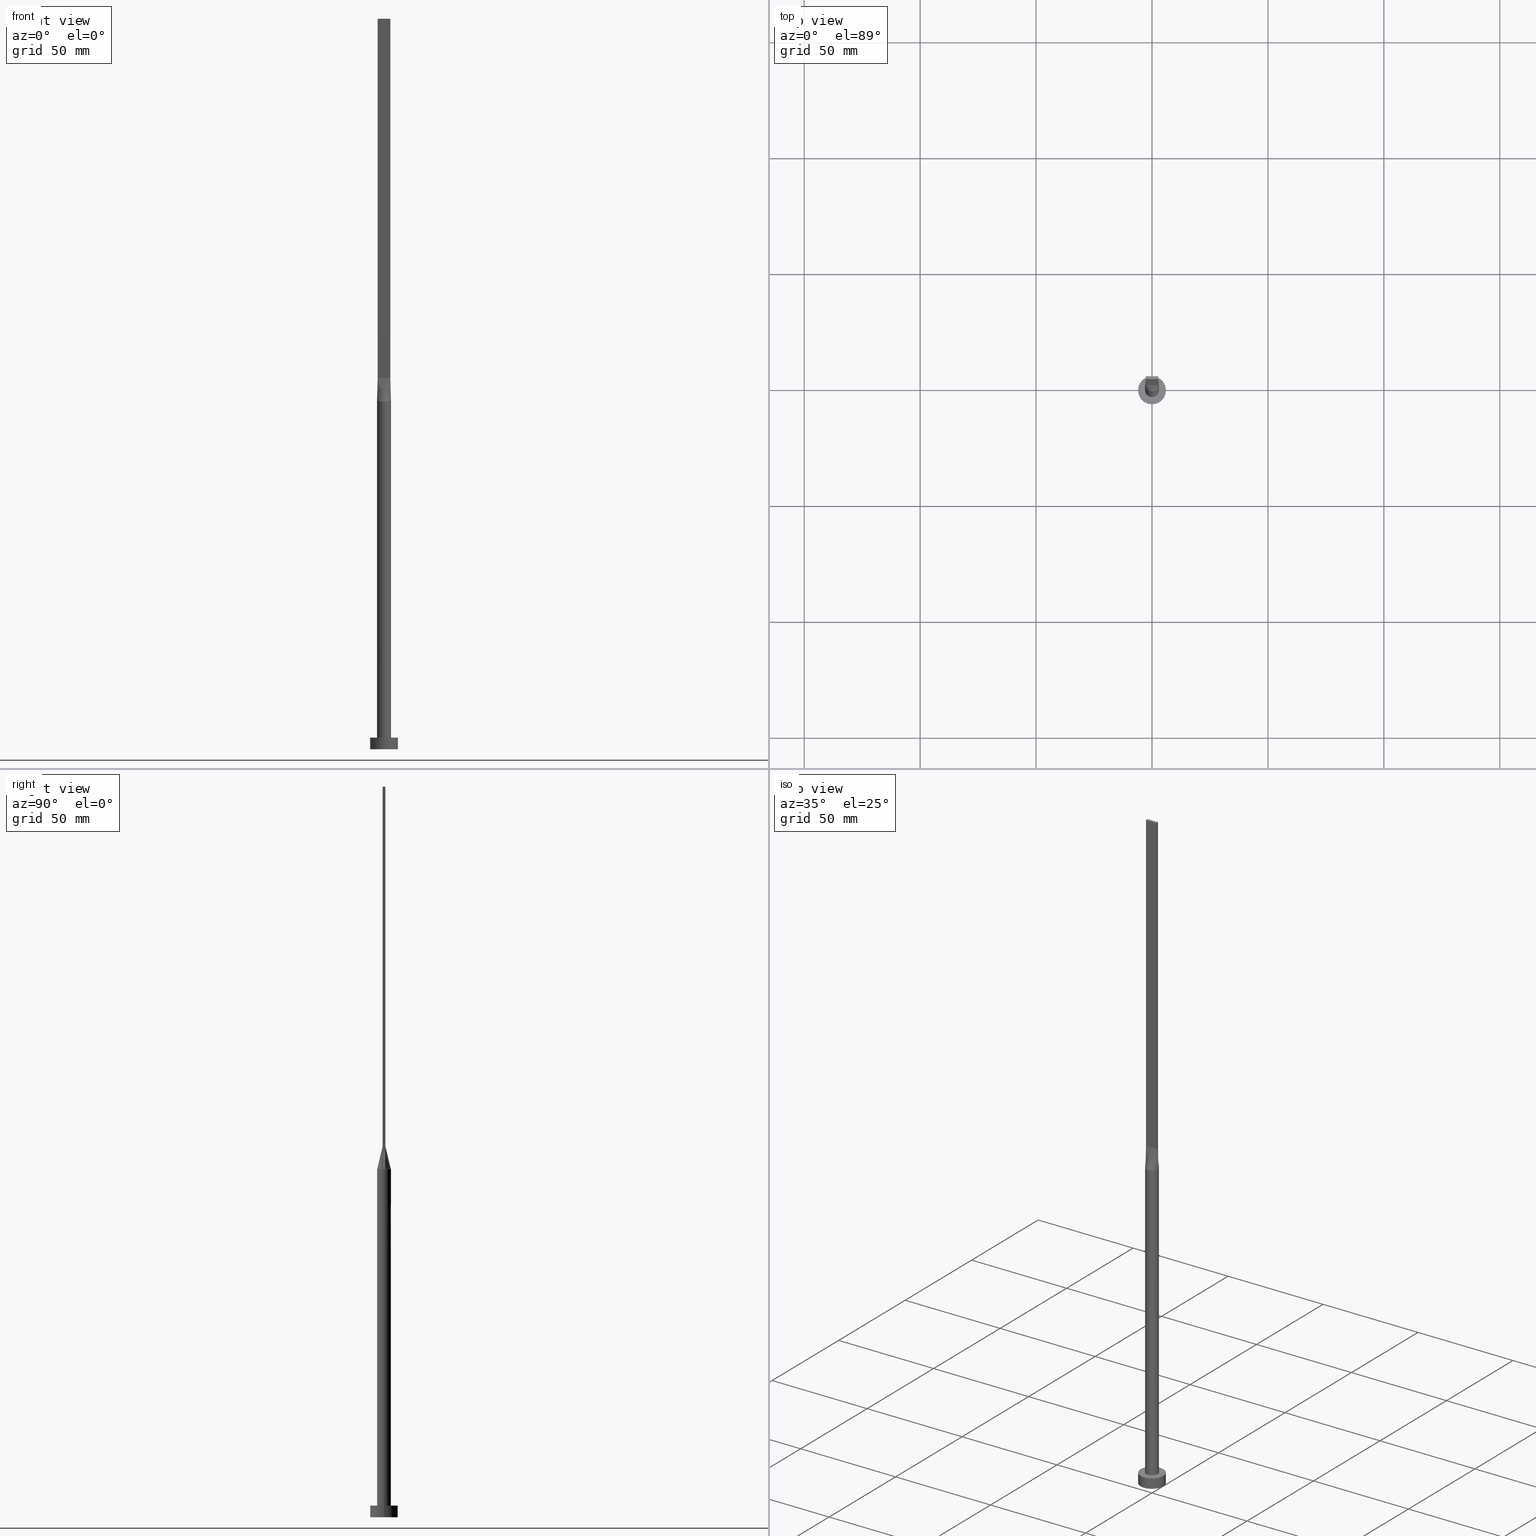
[diagram: canonical four-view strip — front | top / right | iso, engineering-drawing reading convention]
A machine part, canonical four-view strip (front | top / right | iso — engineering-drawing reading convention). The complete STEP part file that produces these views, byte-faithful:
ISO-10303-21;
HEADER;
FILE_DESCRIPTION (( 'STEP AP203' ),
    '1' );
FILE_NAME ('fc48.STEP',
    '2023-02-13T11:40:34',
    ( '' ),
    ( '' ),
    'SwSTEP 2.0',
    'SolidWorks 2019',
    '' );
FILE_SCHEMA (( 'CONFIG_CONTROL_DESIGN' ));
ENDSEC;

DATA;
#1 = VERTEX_POINT ( 'NONE', #105 ) ;
#2 = COORDINATED_UNIVERSAL_TIME_OFFSET ( 1, 0, .AHEAD. ) ;
#3 = VERTEX_POINT ( 'NONE', #55 ) ;
#4 = VERTEX_POINT ( 'NONE', #199 ) ;
#5 = CC_DESIGN_PERSON_AND_ORGANIZATION_ASSIGNMENT ( #410, #500, ( #15 ) ) ;
#6 = AXIS2_PLACEMENT_3D ( 'NONE', #347, #482, #294 ) ;
#7 = ORIENTED_EDGE ( 'NONE', *, *, #92, .F. ) ;
#8 = DATE_AND_TIME ( #132, #115 ) ;
#9 = CARTESIAN_POINT ( 'NONE',  ( 1.517787371616671876, -2.616501225271829156, 150.0000000000000853 ) ) ;
#10 = CARTESIAN_POINT ( 'NONE',  ( 0.8041209001220689379, 2.916015559847871863, 150.0000000000000000 ) ) ;
#11 = CARTESIAN_POINT ( 'NONE',  ( 2.291666666666667851, 0.6000000000000000888, 159.9999999999999716 ) ) ;
#12 = CARTESIAN_POINT ( 'NONE',  ( -6.000000000000000888, 0.000000000000000000, 5.000000000000000000 ) ) ;
#13 = CARTESIAN_POINT ( 'NONE',  ( 2.518011668798964209, -1.657305971825550506, 150.0000000000000000 ) ) ;
#14 = AXIS2_PLACEMENT_3D ( 'NONE', #104, #158, #342 ) ;
#15 = PRODUCT_DEFINITION_FORMATION_WITH_SPECIFIED_SOURCE ( 'LIBOVOLN�', '', #272, .NOT_KNOWN. ) ;
#16 = EDGE_CURVE ( 'NONE', #46, #434, #52, .T. ) ;
#17 = CARTESIAN_POINT ( 'NONE',  ( 2.750000000000000000, 0.6000000000000001998, 315.0000000000000000 ) ) ;
#18 = CARTESIAN_POINT ( 'NONE',  ( -2.792624347712117761, 1.135030881087315313, 150.0000000000000000 ) ) ;
#19 = CARTESIAN_POINT ( 'NONE',  ( -2.792624347712117761, 1.135030881087315313, 150.0000000000000000 ) ) ;
#20 = DIRECTION ( 'NONE',  ( 0.000000000000000000, 0.000000000000000000, 1.000000000000000000 ) ) ;
#21 = CARTESIAN_POINT ( 'NONE',  ( -0.4026715616377299356, 2.999999999999999556, 150.0000000000000000 ) ) ;
#22 = EDGE_CURVE ( 'NONE', #157, #310, #333, .T. ) ;
#23 = CARTESIAN_POINT ( 'NONE',  ( 1.517787371616672099, 2.616501225271827824, 150.0000000000000000 ) ) ;
#24 = CARTESIAN_POINT ( 'NONE',  ( -3.000000000000000444, 0.000000000000000000, 150.0000000000000000 ) ) ;
#25 = LINE ( 'NONE', #521, #152 ) ;
#26 = DIRECTION ( 'NONE',  ( -0.000000000000000000, -0.000000000000000000, -1.000000000000000000 ) ) ;
#27 = ORIENTED_EDGE ( 'NONE', *, *, #77, .F. ) ;
#28 =( NAMED_UNIT ( * ) SI_UNIT ( $, .STERADIAN. ) SOLID_ANGLE_UNIT ( ) );
#29 = CARTESIAN_POINT ( 'NONE',  ( -2.750000000000000000, -0.5999999999999994227, 315.0000000000000000 ) ) ;
#30 = ORIENTED_EDGE ( 'NONE', *, *, #502, .F. ) ;
#31 = APPLICATION_PROTOCOL_DEFINITION ( 'international standard', 'config_control_design', 1994, #360 ) ;
#32 = CARTESIAN_POINT ( 'NONE',  ( 0.000000000000000000, 0.000000000000000000, 0.000000000000000000 ) ) ;
#33 = VECTOR ( 'NONE', #245, 1000.000000000000000 ) ;
#34 = APPLICATION_PROTOCOL_DEFINITION ( 'international standard', 'config_control_design', 1994, #531 ) ;
#35 = FACE_OUTER_BOUND ( 'NONE', #279, .T. ) ;
#36 = CARTESIAN_POINT ( 'NONE',  ( -2.750000000000000000, 0.4000000000000000222, 159.9999999999999716 ) ) ;
#37 = CARTESIAN_POINT ( 'NONE',  ( 0.9166666666666676289, -0.5999999999999996447, 159.9999999999999716 ) ) ;
#38 = ORIENTED_EDGE ( 'NONE', *, *, #508, .F. ) ;
#39 = ADVANCED_FACE ( 'NONE', ( #242 ), #505, .T. ) ;
#40 = DIRECTION ( 'NONE',  ( -0.01810162078030960742, -0.003949444533885646501, -0.9998283518749604415 ) ) ;
#41 = DIRECTION ( 'NONE',  ( -0.01810162078030960742, 0.003949444533885591857, 0.9998283518749604415 ) ) ;
#42 = VERTEX_POINT ( 'NONE', #335 ) ;
#43 = CALENDAR_DATE ( 2023, 13, 2 ) ;
#44 = ORIENTED_EDGE ( 'NONE', *, *, #16, .F. ) ;
#45 = ADVANCED_FACE ( 'NONE', ( #381 ), #415, .F. ) ;
#46 = VERTEX_POINT ( 'NONE', #249 ) ;
#47 = APPROVAL_ROLE ( '' ) ;
#48 = ORIENTED_EDGE ( 'NONE', *, *, #356, .F. ) ;
#49 = CALENDAR_DATE ( 2023, 13, 2 ) ;
#50 = CARTESIAN_POINT ( 'NONE',  ( 1.833333333333333481, -0.5999999999999996447, 159.9999999999999716 ) ) ;
#51 = AXIS2_PLACEMENT_3D ( 'NONE', #29, #386, #251 ) ;
#52 = LINE ( 'NONE', #12, #357 ) ;
#53 = APPROVAL_ROLE ( '' ) ;
#54 = CARTESIAN_POINT ( 'NONE',  ( 2.878980386154874616, 0.8781411751610636029, 150.0000000000000284 ) ) ;
#55 = CARTESIAN_POINT ( 'NONE',  ( -2.931315536094174057, -0.6395601373676296220, 150.0000000000000000 ) ) ;
#56 = EDGE_CURVE ( 'NONE', #367, #364, #213, .T. ) ;
#57 = DIRECTION ( 'NONE',  ( 1.000000000000000000, 0.000000000000000000, 0.000000000000000000 ) ) ;
#58 = B_SPLINE_SURFACE_WITH_KNOTS ( 'NONE', 3, 1, ( 
 ( #516, #427 ),
 ( #110, #292 ),
 ( #86, #266 ),
 ( #127, #269 ),
 ( #447, #82 ),
 ( #440, #489 ) ),
 .UNSPECIFIED., .F., .F., .F.,
 ( 4, 2, 4 ),
 ( 2, 2 ),
 ( 0.000000000000000000, 0.5000000000000000000, 1.000000000000000000 ),
 ( 0.000000000000000000, 1.000000000000000000 ),
 .UNSPECIFIED. ) ;
#59 = CARTESIAN_POINT ( 'NONE',  ( 2.750000000000000000, -0.5999999999999997558, 315.0000000000000000 ) ) ;
#60 = PLANE ( 'NONE',  #193 ) ;
#61 = AXIS2_PLACEMENT_3D ( 'NONE', #490, #506, #577 ) ;
#62 = CIRCLE ( 'NONE', #325, 3.000000000000000444 ) ;
#63 = AXIS2_PLACEMENT_3D ( 'NONE', #270, #464, #405 ) ;
#64 = CARTESIAN_POINT ( 'NONE',  ( -2.518011668798964653, 1.657305971825549840, 150.0000000000000284 ) ) ;
#65 = FACE_OUTER_BOUND ( 'NONE', #526, .T. ) ;
#66 = ORIENTED_EDGE ( 'NONE', *, *, #460, .F. ) ;
#67 = CARTESIAN_POINT ( 'NONE',  ( 2.750000000000000000, 0.6000000000000001998, 160.0000000000000000 ) ) ;
#68 = LINE ( 'NONE', #24, #238 ) ;
#69 = CARTESIAN_POINT ( 'NONE',  ( -6.000000000000000888, 0.000000000000000000, 0.000000000000000000 ) ) ;
#70 = AXIS2_PLACEMENT_3D ( 'NONE', #87, #283, #57 ) ;
#71 = AXIS2_PLACEMENT_3D ( 'NONE', #378, #200, #432 ) ;
#72 = DIRECTION ( 'NONE',  ( 0.000000000000000000, 0.000000000000000000, 1.000000000000000000 ) ) ;
#73 = CIRCLE ( 'NONE', #413, 6.000000000000000888 ) ;
#74 = VERTEX_POINT ( 'NONE', #330 ) ;
#75 = LINE ( 'NONE', #334, #192 ) ;
#76 = CARTESIAN_POINT ( 'NONE',  ( -0.8041209001220698260, -2.916015559847872307, 150.0000000000000000 ) ) ;
#77 = EDGE_CURVE ( 'NONE', #85, #166, #291, .T. ) ;
#78 = CARTESIAN_POINT ( 'NONE',  ( 6.000000000000000888, 7.347880794884120722E-16, 5.000000000000000000 ) ) ;
#79 = PERSON_AND_ORGANIZATION ( #567, #237 ) ;
#80 = CARTESIAN_POINT ( 'NONE',  ( 0.000000000000000000, 0.000000000000000000, 150.0000000000000000 ) ) ;
#81 = VECTOR ( 'NONE', #568, 1000.000000000000000 ) ;
#82 = CARTESIAN_POINT ( 'NONE',  ( 2.750000000000000000, 0.4000000000000004108, 159.9999999999999716 ) ) ;
#83 = CARTESIAN_POINT ( 'NONE',  ( 0.000000000000000000, 0.000000000000000000, 150.0000000000000000 ) ) ;
#84 = ADVANCED_FACE ( 'NONE', ( #560, #154 ), #282, .T. ) ;
#85 = VERTEX_POINT ( 'NONE', #284 ) ;
#86 = CARTESIAN_POINT ( 'NONE',  ( 2.999207587164657074, -0.2156168166748835269, 150.0000000000000000 ) ) ;
#87 = CARTESIAN_POINT ( 'NONE',  ( 0.000000000000000000, 0.000000000000000000, 5.000000000000000000 ) ) ;
#88 = ORIENTED_EDGE ( 'NONE', *, *, #260, .F. ) ;
#89 = CARTESIAN_POINT ( 'NONE',  ( -2.750000000000000000, 0.2000000000000000111, 159.9999999999999716 ) ) ;
#90 = ORIENTED_EDGE ( 'NONE', *, *, #477, .F. ) ;
#91 = PERSON_AND_ORGANIZATION ( #567, #237 ) ;
#92 = EDGE_CURVE ( 'NONE', #359, #131, #553, .T. ) ;
#93 = EDGE_LOOP ( 'NONE', ( #476, #491, #117, #175, #66 ) ) ;
#94 = DATE_AND_TIME ( #122, #298 ) ;
#95 = ORIENTED_EDGE ( 'NONE', *, *, #391, .T. ) ;
#96 = CARTESIAN_POINT ( 'NONE',  ( 0.2291666666666674901, -0.5999999999999995337, 159.9999999999999716 ) ) ;
#97 = CARTESIAN_POINT ( 'NONE',  ( 2.878980386154874616, 0.8781411751610636029, 150.0000000000000284 ) ) ;
#98 = CC_DESIGN_APPROVAL ( #436, ( #540 ) ) ;
#99 = DIRECTION ( 'NONE',  ( 0.000000000000000000, 0.000000000000000000, 1.000000000000000000 ) ) ;
#100 = CIRCLE ( 'NONE', #176, 6.000000000000000888 ) ;
#101 = DIRECTION ( 'NONE',  ( 1.000000000000000000, 0.000000000000000000, -0.000000000000000000 ) ) ;
#102 = CARTESIAN_POINT ( 'NONE',  ( 0.8041209001220684938, -2.916015559847872751, 150.0000000000000000 ) ) ;
#103 = DIRECTION ( 'NONE',  ( 1.000000000000000000, 0.000000000000000000, 0.000000000000000000 ) ) ;
#104 = CARTESIAN_POINT ( 'NONE',  ( 0.000000000000000000, 0.000000000000000000, 5.000000000000000000 ) ) ;
#105 = CARTESIAN_POINT ( 'NONE',  ( 6.000000000000000888, 7.347880794884120722E-16, 0.000000000000000000 ) ) ;
#106 = CARTESIAN_POINT ( 'NONE',  ( 0.2291666666666700158, 0.6000000000000001998, 160.0000000000000000 ) ) ;
#107 = EDGE_CURVE ( 'NONE', #231, #4, #431, .T. ) ;
#108 = CIRCLE ( 'NONE', #346, 6.000000000000000888 ) ;
#109 = CARTESIAN_POINT ( 'NONE',  ( -2.931320679040856803, 0.6395611071856786012, 150.0000000000000000 ) ) ;
#110 = CARTESIAN_POINT ( 'NONE',  ( 2.976487486186430331, -0.4312336333497666652, 150.0000000000000000 ) ) ;
#111 = PLANE ( 'NONE',  #6 ) ;
#112 = CARTESIAN_POINT ( 'NONE',  ( -1.829136458871247761, 2.402980488111649660, 149.9999999999999716 ) ) ;
#113 = CARTESIAN_POINT ( 'NONE',  ( -2.518011668798964653, -1.657305971825550062, 150.0000000000000284 ) ) ;
#114 = CARTESIAN_POINT ( 'NONE',  ( 1.145833333333336368, 0.6000000000000000888, 159.9999999999999716 ) ) ;
#115 = LOCAL_TIME ( 12, 40, 34.00000000000000000, #416 ) ;
#116 = CARTESIAN_POINT ( 'NONE',  ( -1.829136458871248427, -2.402980488111649660, 149.9999999999999432 ) ) ;
#117 = ORIENTED_EDGE ( 'NONE', *, *, #556, .F. ) ;
#118 = EDGE_CURVE ( 'NONE', #310, #85, #421, .T. ) ;
#119 = CARTESIAN_POINT ( 'NONE',  ( 2.750000000000000000, -0.5999999999999997558, 160.0000000000000000 ) ) ;
#120 = CARTESIAN_POINT ( 'NONE',  ( 2.750000000000000000, -0.5999999999999997558, 315.0000000000000000 ) ) ;
#121 = EDGE_LOOP ( 'NONE', ( #274, #543 ) ) ;
#122 = CALENDAR_DATE ( 2023, 13, 2 ) ;
#123 = EDGE_CURVE ( 'NONE', #42, #166, #197, .T. ) ;
#124 = CARTESIAN_POINT ( 'NONE',  ( 2.518011668798964209, 1.657305971825549840, 150.0000000000000284 ) ) ;
#125 = EDGE_LOOP ( 'NONE', ( #316, #496, #411, #169 ) ) ;
#126 = VECTOR ( 'NONE', #575, 1000.000000000000000 ) ;
#127 = CARTESIAN_POINT ( 'NONE',  ( 2.999207587164657074, 0.2156168166748827775, 150.0000000000000000 ) ) ;
#128 = CARTESIAN_POINT ( 'NONE',  ( -2.931320679040856803, 0.6395611071856786012, 150.0000000000000000 ) ) ;
#129 = EDGE_LOOP ( 'NONE', ( #314, #499, #233, #44 ) ) ;
#130 = DIRECTION ( 'NONE',  ( -0.000000000000000000, -0.000000000000000000, -1.000000000000000000 ) ) ;
#131 = VERTEX_POINT ( 'NONE', #379 ) ;
#132 = CALENDAR_DATE ( 2023, 13, 2 ) ;
#133 = ORIENTED_EDGE ( 'NONE', *, *, #107, .T. ) ;
#134 = AXIS2_PLACEMENT_3D ( 'NONE', #425, #20, #383 ) ;
#135 = COORDINATED_UNIVERSAL_TIME_OFFSET ( 1, 0, .AHEAD. ) ;
#136 = ORIENTED_EDGE ( 'NONE', *, *, #180, .F. ) ;
#137 = PERSON_AND_ORGANIZATION_ROLE ( 'creator' ) ;
#138 = ORIENTED_EDGE ( 'NONE', *, *, #77, .T. ) ;
#139 = CARTESIAN_POINT ( 'NONE',  ( 2.792624347712116872, -1.135030881087315757, 150.0000000000000000 ) ) ;
#140 = ADVANCED_FACE ( 'NONE', ( #204 ), #111, .T. ) ;
#141 = CARTESIAN_POINT ( 'NONE',  ( 0.4026715616377294915, 2.999999999999999556, 150.0000000000000000 ) ) ;
#142 = CARTESIAN_POINT ( 'NONE',  ( 2.328745122427009040, 1.922758842442225946, 149.9999999999999716 ) ) ;
#143 = CARTESIAN_POINT ( 'NONE',  ( 2.328745122427009040, 1.922758842442225946, 149.9999999999999716 ) ) ;
#144 = B_SPLINE_SURFACE_WITH_KNOTS ( 'NONE', 3, 1, ( 
 ( #457, #462 ),
 ( #54, #354 ),
 ( #241, #11 ),
 ( #124, #372 ),
 ( #142, #469 ),
 ( #288, #114 ),
 ( #23, #246 ),
 ( #297, #202 ),
 ( #473, #106 ),
 ( #554, #385 ),
 ( #471, #206 ),
 ( #149, #248 ),
 ( #112, #387 ),
 ( #564, #250 ),
 ( #478, #557 ),
 ( #18, #332 ),
 ( #340, #561 ),
 ( #155, #295 ) ),
 .UNSPECIFIED., .F., .F., .F.,
 ( 4, 2, 2, 2, 2, 2, 2, 2, 4 ),
 ( 2, 2 ),
 ( 0.000000000000000000, 0.1250000000000000000, 0.2500000000000000000, 0.3750000000000000000, 0.5000000000000000000, 0.6250000000000000000, 0.7500000000000000000, 0.8750000000000000000, 1.000000000000000000 ),
 ( 0.000000000000000000, 1.000000000000000000 ),
 .UNSPECIFIED. ) ;
#145 = LINE ( 'NONE', #67, #336 ) ;
#146 = PRODUCT_DEFINITION_SHAPE ( 'NONE', 'NONE',  #540 ) ;
#147 = CARTESIAN_POINT ( 'NONE',  ( 0.000000000000000000, 0.000000000000000000, 5.000000000000000000 ) ) ;
#148 = EDGE_CURVE ( 'NONE', #313, #538, #275, .T. ) ;
#149 = CARTESIAN_POINT ( 'NONE',  ( -1.517787371616671654, 2.616501225271827380, 150.0000000000000000 ) ) ;
#150 = DIRECTION ( 'NONE',  ( 0.000000000000000000, -1.000000000000000000, 0.000000000000000000 ) ) ;
#151 = FACE_OUTER_BOUND ( 'NONE', #430, .T. ) ;
#152 = VECTOR ( 'NONE', #435, 1000.000000000000000 ) ;
#153 = AXIS2_PLACEMENT_3D ( 'NONE', #120, #572, #72 ) ;
#154 = FACE_OUTER_BOUND ( 'NONE', #121, .T. ) ;
#155 = CARTESIAN_POINT ( 'NONE',  ( -2.931047284229977290, 0.6395012256501755310, 150.0000000000000000 ) ) ;
#156 = CARTESIAN_POINT ( 'NONE',  ( -2.931047284229977734, -0.6395012256501755310, 150.0000000000000000 ) ) ;
#157 = VERTEX_POINT ( 'NONE', #529 ) ;
#158 = DIRECTION ( 'NONE',  ( 0.000000000000000000, 0.000000000000000000, 1.000000000000000000 ) ) ;
#159 = EDGE_CURVE ( 'NONE', #74, #46, #108, .T. ) ;
#160 = CARTESIAN_POINT ( 'NONE',  ( -1.833333333333331705, -0.5999999999999994227, 159.9999999999999716 ) ) ;
#161 = ORIENTED_EDGE ( 'NONE', *, *, #287, .T. ) ;
#162 = LINE ( 'NONE', #536, #227 ) ;
#163 = CC_DESIGN_SECURITY_CLASSIFICATION ( #579, ( #15 ) ) ;
#164 = DIRECTION ( 'NONE',  ( 0.000000000000000000, 0.000000000000000000, 1.000000000000000000 ) ) ;
#165 = VECTOR ( 'NONE', #218, 1000.000000000000000 ) ;
#166 = VERTEX_POINT ( 'NONE', #119 ) ;
#167 = CARTESIAN_POINT ( 'NONE',  ( -2.976487486186430331, -0.4312336333497656105, 150.0000000000000000 ) ) ;
#168 = CARTESIAN_POINT ( 'NONE',  ( 2.750000000000000000, -0.5999999999999997558, 315.0000000000000000 ) ) ;
#169 = ORIENTED_EDGE ( 'NONE', *, *, #196, .T. ) ;
#170 = CC_DESIGN_DATE_AND_TIME_ASSIGNMENT ( #8, #494, ( #579 ) ) ;
#171 = CARTESIAN_POINT ( 'NONE',  ( -2.750000000000000000, 0.6000000000000001998, 160.0000000000000000 ) ) ;
#172 = ORIENTED_EDGE ( 'NONE', *, *, #56, .F. ) ;
#173 = FACE_OUTER_BOUND ( 'NONE', #219, .T. ) ;
#174 = APPROVAL_PERSON_ORGANIZATION ( #229, #215, #47 ) ;
#175 = ORIENTED_EDGE ( 'NONE', *, *, #118, .F. ) ;
#176 = AXIS2_PLACEMENT_3D ( 'NONE', #441, #164, #525 ) ;
#177 = DIRECTION ( 'NONE',  ( -0.01810162078030960742, -0.003949444533885603133, 0.9998283518749604415 ) ) ;
#178 = ORIENTED_EDGE ( 'NONE', *, *, #508, .T. ) ;
#179 = DATE_AND_TIME ( #49, #450 ) ;
#180 = EDGE_CURVE ( 'NONE', #1, #434, #100, .T. ) ;
#181 = ORIENTED_EDGE ( 'NONE', *, *, #562, .F. ) ;
#182 = ORIENTED_EDGE ( 'NONE', *, *, #92, .T. ) ;
#183 = CALENDAR_DATE ( 2023, 13, 2 ) ;
#184 = AXIS2_PLACEMENT_3D ( 'NONE', #17, #150, #468 ) ;
#185 = ORIENTED_EDGE ( 'NONE', *, *, #56, .T. ) ;
#186 = DATE_TIME_ROLE ( 'creation_date' ) ;
#187 = EDGE_CURVE ( 'NONE', #74, #1, #304, .T. ) ;
#188 = FACE_OUTER_BOUND ( 'NONE', #208, .T. ) ;
#189 = DIRECTION ( 'NONE',  ( -1.000000000000000000, -0.000000000000000000, -0.000000000000000000 ) ) ;
#190 = CARTESIAN_POINT ( 'NONE',  ( 0.4026715616377293805, -3.000000000000001332, 150.0000000000000000 ) ) ;
#191 = CARTESIAN_POINT ( 'NONE',  ( 0.000000000000000000, 0.000000000000000000, 5.000000000000000000 ) ) ;
#192 = VECTOR ( 'NONE', #510, 1000.000000000000000 ) ;
#193 = AXIS2_PLACEMENT_3D ( 'NONE', #380, #559, #195 ) ;
#194 = CC_DESIGN_APPROVAL ( #293, ( #579 ) ) ;
#195 = DIRECTION ( 'NONE',  ( -0.000000000000000000, 0.000000000000000000, -1.000000000000000000 ) ) ;
#196 = EDGE_CURVE ( 'NONE', #434, #1, #73, .T. ) ;
#197 = LINE ( 'NONE', #59, #33 ) ;
#198 = DIRECTION ( 'NONE',  ( 1.000000000000000000, 0.000000000000000000, 0.000000000000000000 ) ) ;
#199 = CARTESIAN_POINT ( 'NONE',  ( 3.000000000000000444, 3.673940397442060361E-16, 5.000000000000000000 ) ) ;
#200 = DIRECTION ( 'NONE',  ( -0.000000000000000000, -0.000000000000000000, -1.000000000000000000 ) ) ;
#201 = CARTESIAN_POINT ( 'NONE',  ( -2.328745122427008152, 1.922758842442225280, 150.0000000000000284 ) ) ;
#202 = CARTESIAN_POINT ( 'NONE',  ( 0.4583333333333366455, 0.6000000000000000888, 159.9999999999999716 ) ) ;
#203 = VECTOR ( 'NONE', #555, 1000.000000000000000 ) ;
#204 = FACE_OUTER_BOUND ( 'NONE', #397, .T. ) ;
#205 = EDGE_LOOP ( 'NONE', ( #322, #88, #7, #222 ) ) ;
#206 = CARTESIAN_POINT ( 'NONE',  ( -0.4583333333333300397, 0.6000000000000000888, 159.9999999999999716 ) ) ;
#207 = CARTESIAN_POINT ( 'NONE',  ( -2.520833333333333037, -0.5999999999999994227, 159.9999999999999716 ) ) ;
#208 = EDGE_LOOP ( 'NONE', ( #181, #449, #38, #412, #348, #133 ) ) ;
#209 = DIRECTION ( 'NONE',  ( 1.000000000000000000, 0.000000000000000000, 0.000000000000000000 ) ) ;
#210 = CARTESIAN_POINT ( 'NONE',  ( 2.750000000000000000, 0.6000000000000001998, 315.0000000000000000 ) ) ;
#211 = ORIENTED_EDGE ( 'NONE', *, *, #236, .F. ) ;
#212 = FACE_OUTER_BOUND ( 'NONE', #93, .T. ) ;
#213 = B_SPLINE_CURVE_WITH_KNOTS ( 'NONE', 3,
 ( #465, #97, #558, #424, #143, #514, #426, #10, #141, #21, #376, #371, #550, #201, #64, #19, #326, #109 ),
 .UNSPECIFIED., .F., .F.,
 ( 4, 2, 2, 2, 2, 2, 2, 2, 4 ),
 ( 0.000000000000000000, 0.1250000000000000000, 0.2500000000000000000, 0.3750000000000000000, 0.5000000000000000000, 0.6250000000000000000, 0.7500000000000000000, 0.8750000000000000000, 1.000000000000000000 ),
 .UNSPECIFIED. ) ;
#214 = LINE ( 'NONE', #168, #317 ) ;
#215 = APPROVAL ( #407, 'NEUR�EN�' ) ;
#216 = ORIENTED_EDGE ( 'NONE', *, *, #556, .T. ) ;
#217 = DIRECTION ( 'NONE',  ( 0.000000000000000000, 0.000000000000000000, 1.000000000000000000 ) ) ;
#218 = DIRECTION ( 'NONE',  ( -0.000000000000000000, -0.000000000000000000, -1.000000000000000000 ) ) ;
#219 = EDGE_LOOP ( 'NONE', ( #258, #136 ) ) ;
#220 = CARTESIAN_POINT ( 'NONE',  ( -2.999207587164656630, 0.2156168166748832771, 150.0000000000000000 ) ) ;
#221 = CARTESIAN_POINT ( 'NONE',  ( 2.291666666666666519, -0.5999999999999996447, 159.9999999999999716 ) ) ;
#222 = ORIENTED_EDGE ( 'NONE', *, *, #417, .T. ) ;
#223 = B_SPLINE_SURFACE_WITH_KNOTS ( 'NONE', 3, 1, ( 
 ( #403, #486 ),
 ( #306, #36 ),
 ( #220, #89 ),
 ( #571, #528 ),
 ( #167, #580 ),
 ( #303, #481 ) ),
 .UNSPECIFIED., .F., .F., .F.,
 ( 4, 2, 4 ),
 ( 2, 2 ),
 ( 0.000000000000000000, 0.5000000000000000000, 1.000000000000000000 ),
 ( 0.000000000000000000, 1.000000000000000000 ),
 .UNSPECIFIED. ) ;
#224 = DIRECTION ( 'NONE',  ( -0.000000000000000000, -0.000000000000000000, -1.000000000000000000 ) ) ;
#225 = VECTOR ( 'NONE', #130, 1000.000000000000000 ) ;
#226 = CARTESIAN_POINT ( 'NONE',  ( 1.145833333333333925, -0.5999999999999996447, 159.9999999999999716 ) ) ;
#227 = VECTOR ( 'NONE', #40, 1000.000000000000000 ) ;
#228 = ORIENTED_EDGE ( 'NONE', *, *, #502, .T. ) ;
#229 = PERSON_AND_ORGANIZATION ( #567, #237 ) ;
#230 = ADVANCED_FACE ( 'NONE', ( #439 ), #472, .F. ) ;
#231 = VERTEX_POINT ( 'NONE', #264 ) ;
#232 = PERSON_AND_ORGANIZATION ( #567, #237 ) ;
#233 = ORIENTED_EDGE ( 'NONE', *, *, #180, .T. ) ;
#234 = SECURITY_CLASSIFICATION_LEVEL ( 'unclassified' ) ;
#235 = EDGE_LOOP ( 'NONE', ( #534, #492, #541, #480 ) ) ;
#236 = EDGE_CURVE ( 'NONE', #578, #231, #68, .T. ) ;
#237 = ORGANIZATION ( 'NEUR�EN�', 'NEUR�EN�', '' ) ;
#238 = VECTOR ( 'NONE', #26, 1000.000000000000000 ) ;
#239 = CARTESIAN_POINT ( 'NONE',  ( -2.750000000000000000, 0.6000000000000001998, 315.0000000000000000 ) ) ;
#240 = CARTESIAN_POINT ( 'NONE',  ( 0.000000000000000000, 0.000000000000000000, 5.000000000000000000 ) ) ;
#241 = CARTESIAN_POINT ( 'NONE',  ( 2.792624347712116872, 1.135030881087315979, 150.0000000000000284 ) ) ;
#242 = FACE_OUTER_BOUND ( 'NONE', #125, .T. ) ;
#243 = B_SPLINE_SURFACE_WITH_KNOTS ( 'NONE', 3, 1, ( 
 ( #156, #341 ),
 ( #255, #207 ),
 ( #565, #520 ),
 ( #113, #160 ),
 ( #392, #343 ),
 ( #116, #522 ),
 ( #479, #300 ),
 ( #76, #437 ),
 ( #549, #501 ),
 ( #190, #96 ),
 ( #102, #280 ),
 ( #9, #37 ),
 ( #401, #226 ),
 ( #267, #308 ),
 ( #13, #50 ),
 ( #139, #221 ),
 ( #361, #445 ),
 ( #285, #487 ) ),
 .UNSPECIFIED., .F., .F., .F.,
 ( 4, 2, 2, 2, 2, 2, 2, 2, 4 ),
 ( 2, 2 ),
 ( 0.000000000000000000, 0.1250000000000000833, 0.2500000000000001665, 0.3750000000000001110, 0.5000000000000001110, 0.6250000000000001110, 0.7500000000000000000, 0.8750000000000000000, 1.000000000000000000 ),
 ( 0.000000000000000000, 1.000000000000000000 ),
 .UNSPECIFIED. ) ;
#244 = CYLINDRICAL_SURFACE ( 'NONE', #63, 3.000000000000000444 ) ;
#245 = DIRECTION ( 'NONE',  ( -0.000000000000000000, -0.000000000000000000, -1.000000000000000000 ) ) ;
#246 = CARTESIAN_POINT ( 'NONE',  ( 0.9166666666666698493, 0.6000000000000000888, 159.9999999999999716 ) ) ;
#247 = DIRECTION ( 'NONE',  ( -1.000000000000000000, 0.000000000000000000, 0.000000000000000000 ) ) ;
#248 = CARTESIAN_POINT ( 'NONE',  ( -0.9166666666666637431, 0.6000000000000000888, 159.9999999999999716 ) ) ;
#249 = CARTESIAN_POINT ( 'NONE',  ( -6.000000000000000888, 0.000000000000000000, 5.000000000000000000 ) ) ;
#250 = CARTESIAN_POINT ( 'NONE',  ( -1.604166666666664520, 0.6000000000000000888, 159.9999999999999716 ) ) ;
#251 = DIRECTION ( 'NONE',  ( -1.000000000000000000, 5.913830031739115543E-17, 0.000000000000000000 ) ) ;
#252 = ADVANCED_FACE ( 'NONE', ( #35 ), #388, .F. ) ;
#253 = CARTESIAN_POINT ( 'NONE',  ( -2.840523642114988423, 0.6197506128250878099, 155.0000000000000000 ) ) ;
#254 = CC_DESIGN_APPROVAL ( #215, ( #15 ) ) ;
#255 = CARTESIAN_POINT ( 'NONE',  ( -2.878980386154874616, -0.8781411751610622707, 150.0000000000000000 ) ) ;
#256 = DIRECTION ( 'NONE',  ( 0.01810162078030956231, -0.003949444533885570173, 0.9998283518749604415 ) ) ;
#257 = DIRECTION ( 'NONE',  ( 1.000000000000000000, 0.000000000000000000, 0.000000000000000000 ) ) ;
#258 = ORIENTED_EDGE ( 'NONE', *, *, #196, .F. ) ;
#259 = DIRECTION ( 'NONE',  ( 0.000000000000000000, 0.000000000000000000, 1.000000000000000000 ) ) ;
#260 = EDGE_CURVE ( 'NONE', #131, #85, #563, .T. ) ;
#261 = DIRECTION ( 'NONE',  ( 0.000000000000000000, 0.000000000000000000, 1.000000000000000000 ) ) ;
#262 = PERSON_AND_ORGANIZATION_ROLE ( 'design_owner' ) ;
#263 = CIRCLE ( 'NONE', #475, 3.000000000000000444 ) ;
#264 = CARTESIAN_POINT ( 'NONE',  ( -3.000000000000000444, 0.000000000000000000, 5.000000000000000000 ) ) ;
#265 = AXIS2_PLACEMENT_3D ( 'NONE', #191, #507, #103 ) ;
#266 = CARTESIAN_POINT ( 'NONE',  ( 2.750000000000000000, -0.1999999999999993727, 159.9999999999999716 ) ) ;
#267 = CARTESIAN_POINT ( 'NONE',  ( 2.328745122427008152, -1.922758842442226390, 149.9999999999999716 ) ) ;
#268 = ORIENTED_EDGE ( 'NONE', *, *, #22, .T. ) ;
#269 = CARTESIAN_POINT ( 'NONE',  ( 2.750000000000000000, 0.2000000000000005385, 159.9999999999999716 ) ) ;
#270 = CARTESIAN_POINT ( 'NONE',  ( 0.000000000000000000, 0.000000000000000000, 150.0000000000000000 ) ) ;
#271 = ORIENTED_EDGE ( 'NONE', *, *, #460, .T. ) ;
#272 = PRODUCT ( 'fc48', 'fc48', '', ( #350 ) ) ;
#273 = EDGE_CURVE ( 'NONE', #352, #157, #399, .T. ) ;
#274 = ORIENTED_EDGE ( 'NONE', *, *, #373, .T. ) ;
#275 = CIRCLE ( 'NONE', #328, 3.000000000000000444 ) ;
#276 = DATE_AND_TIME ( #43, #429 ) ;
#277 = ORIENTED_EDGE ( 'NONE', *, *, #453, .T. ) ;
#278 = CC_DESIGN_PERSON_AND_ORGANIZATION_ASSIGNMENT ( #318, #366, ( #579 ) ) ;
#279 = EDGE_LOOP ( 'NONE', ( #138, #301, #30, #570 ) ) ;
#280 = CARTESIAN_POINT ( 'NONE',  ( 0.4583333333333343695, -0.5999999999999995337, 159.9999999999999716 ) ) ;
#281 = VECTOR ( 'NONE', #224, 1000.000000000000000 ) ;
#282 = PLANE ( 'NONE',  #545 ) ;
#283 = DIRECTION ( 'NONE',  ( 0.000000000000000000, 0.000000000000000000, 1.000000000000000000 ) ) ;
#284 = CARTESIAN_POINT ( 'NONE',  ( -2.750000000000000000, -0.5999999999999994227, 160.0000000000000000 ) ) ;
#285 = CARTESIAN_POINT ( 'NONE',  ( 2.931047284229977734, -0.6395012256501753090, 150.0000000000000000 ) ) ;
#286 = CARTESIAN_POINT ( 'NONE',  ( -2.750000000000000000, 0.6000000000000001998, 160.0000000000000000 ) ) ;
#287 = EDGE_CURVE ( 'NONE', #42, #352, #214, .T. ) ;
#288 = CARTESIAN_POINT ( 'NONE',  ( 1.829136458871247761, 2.402980488111650992, 149.9999999999999716 ) ) ;
#289 = DIRECTION ( 'NONE',  ( -0.000000000000000000, -0.000000000000000000, -1.000000000000000000 ) ) ;
#290 = CYLINDRICAL_SURFACE ( 'NONE', #71, 3.000000000000000444 ) ;
#291 = LINE ( 'NONE', #470, #309 ) ;
#292 = CARTESIAN_POINT ( 'NONE',  ( 2.750000000000000000, -0.3999999999999994671, 159.9999999999999716 ) ) ;
#293 = APPROVAL ( #315, 'NEUR�EN�' ) ;
#294 = DIRECTION ( 'NONE',  ( 1.000000000000000000, 0.000000000000000000, -0.000000000000000000 ) ) ;
#295 = CARTESIAN_POINT ( 'NONE',  ( -2.750000000000000000, 0.6000000000000001998, 160.0000000000000000 ) ) ;
#296 = CARTESIAN_POINT ( 'NONE',  ( 2.931332910560268790, -0.6395638358681950963, 150.0000000000000000 ) ) ;
#297 = CARTESIAN_POINT ( 'NONE',  ( 0.8041209001220689379, 2.916015559847871863, 150.0000000000000000 ) ) ;
#298 = LOCAL_TIME ( 12, 40, 34.00000000000000000, #532 ) ;
#299 = CLOSED_SHELL ( 'NONE', ( #493, #349, #39, #84, #365, #331, #319, #527, #569, #423, #45, #483, #252, #230, #140 ) ) ;
#300 = CARTESIAN_POINT ( 'NONE',  ( -0.9166666666666650753, -0.5999999999999994227, 159.9999999999999716 ) ) ;
#301 = ORIENTED_EDGE ( 'NONE', *, *, #123, .F. ) ;
#302 = CC_DESIGN_DATE_AND_TIME_ASSIGNMENT ( #276, #186, ( #540 ) ) ;
#303 = CARTESIAN_POINT ( 'NONE',  ( -2.931047284229977734, -0.6395012256501755310, 150.0000000000000000 ) ) ;
#304 = LINE ( 'NONE', #78, #81 ) ;
#305 = DIRECTION ( 'NONE',  ( 0.000000000000000000, 1.000000000000000000, 0.000000000000000000 ) ) ;
#306 = CARTESIAN_POINT ( 'NONE',  ( -2.976487486186430331, 0.4312336333497662211, 150.0000000000000000 ) ) ;
#307 =( GEOMETRIC_REPRESENTATION_CONTEXT ( 3 ) GLOBAL_UNCERTAINTY_ASSIGNED_CONTEXT ( ( #509 ) ) GLOBAL_UNIT_ASSIGNED_CONTEXT ( ( #524, #576, #28 ) ) REPRESENTATION_CONTEXT ( 'NONE', 'WORKASPACE' ) );
#308 = CARTESIAN_POINT ( 'NONE',  ( 1.604166666666666963, -0.5999999999999996447, 159.9999999999999716 ) ) ;
#309 = VECTOR ( 'NONE', #384, 1000.000000000000000 ) ;
#310 = VERTEX_POINT ( 'NONE', #171 ) ;
#311 = CARTESIAN_POINT ( 'NONE',  ( 0.000000000000000000, 0.000000000000000000, 150.0000000000000000 ) ) ;
#312 = CARTESIAN_POINT ( 'NONE',  ( 2.931303352270923757, 0.6395574164693091923, 150.0000000000000000 ) ) ;
#313 = VERTEX_POINT ( 'NONE', #296 ) ;
#314 = ORIENTED_EDGE ( 'NONE', *, *, #159, .F. ) ;
#315 = APPROVAL_STATUS ( 'not_yet_approved' ) ;
#316 = ORIENTED_EDGE ( 'NONE', *, *, #187, .F. ) ;
#317 = VECTOR ( 'NONE', #305, 1000.000000000000000 ) ;
#318 = PERSON_AND_ORGANIZATION ( #567, #237 ) ;
#319 = ADVANCED_FACE ( 'NONE', ( #517 ), #243, .T. ) ;
#320 = ORIENTED_EDGE ( 'NONE', *, *, #467, .T. ) ;
#321 = CARTESIAN_POINT ( 'NONE',  ( 0.000000000000000000, 0.000000000000000000, 0.000000000000000000 ) ) ;
#322 = ORIENTED_EDGE ( 'NONE', *, *, #118, .T. ) ;
#323 = PLANE ( 'NONE',  #324 ) ;
#324 = AXIS2_PLACEMENT_3D ( 'NONE', #321, #99, #358 ) ;
#325 = AXIS2_PLACEMENT_3D ( 'NONE', #422, #466, #198 ) ;
#326 = CARTESIAN_POINT ( 'NONE',  ( -2.878980386154874616, 0.8781411751610629368, 150.0000000000000000 ) ) ;
#327 = PERSON_AND_ORGANIZATION_ROLE ( 'creator' ) ;
#328 = AXIS2_PLACEMENT_3D ( 'NONE', #80, #484, #428 ) ;
#329 = FACE_OUTER_BOUND ( 'NONE', #369, .T. ) ;
#330 = CARTESIAN_POINT ( 'NONE',  ( 6.000000000000000888, 7.347880794884120722E-16, 5.000000000000000000 ) ) ;
#331 = ADVANCED_FACE ( 'NONE', ( #188 ), #244, .T. ) ;
#332 = CARTESIAN_POINT ( 'NONE',  ( -2.291666666666665630, 0.6000000000000000888, 159.9999999999999716 ) ) ;
#333 = LINE ( 'NONE', #511, #395 ) ;
#334 = CARTESIAN_POINT ( 'NONE',  ( 2.750000000000000000, 0.6000000000000001998, 315.0000000000000000 ) ) ;
#335 = CARTESIAN_POINT ( 'NONE',  ( 2.750000000000000000, -0.5999999999999997558, 315.0000000000000000 ) ) ;
#336 = VECTOR ( 'NONE', #512, 1000.000000000000000 ) ;
#337 = LINE ( 'NONE', #253, #513 ) ;
#338 = EDGE_CURVE ( 'NONE', #578, #3, #377, .T. ) ;
#339 = DIRECTION ( 'NONE',  ( -0.000000000000000000, -0.000000000000000000, -1.000000000000000000 ) ) ;
#340 = CARTESIAN_POINT ( 'NONE',  ( -2.878980386154874616, 0.8781411751610629368, 150.0000000000000000 ) ) ;
#341 = CARTESIAN_POINT ( 'NONE',  ( -2.750000000000000000, -0.5999999999999994227, 160.0000000000000000 ) ) ;
#342 = DIRECTION ( 'NONE',  ( 1.000000000000000000, 0.000000000000000000, 0.000000000000000000 ) ) ;
#343 = CARTESIAN_POINT ( 'NONE',  ( -1.604166666666664742, -0.5999999999999994227, 159.9999999999999716 ) ) ;
#344 = CARTESIAN_POINT ( 'NONE',  ( -2.999603793582328315, -7.025298958605770567E-16, 150.0000000000000000 ) ) ;
#345 = APPROVAL_PERSON_ORGANIZATION ( #91, #293, #53 ) ;
#346 = AXIS2_PLACEMENT_3D ( 'NONE', #474, #433, #257 ) ;
#347 = CARTESIAN_POINT ( 'NONE',  ( 0.000000000000000000, 0.000000000000000000, 315.0000000000000000 ) ) ;
#348 = ORIENTED_EDGE ( 'NONE', *, *, #236, .T. ) ;
#349 = ADVANCED_FACE ( 'NONE', ( #537 ), #533, .T. ) ;
#350 = MECHANICAL_CONTEXT ( 'NONE', #360, 'mechanical' ) ;
#351 = CARTESIAN_POINT ( 'NONE',  ( -2.750000000000000000, -0.5999999999999994227, 315.0000000000000000 ) ) ;
#352 = VERTEX_POINT ( 'NONE', #414 ) ;
#353 = APPROVAL_ROLE ( '' ) ;
#354 = CARTESIAN_POINT ( 'NONE',  ( 2.520833333333333925, 0.6000000000000000888, 159.9999999999999716 ) ) ;
#355 = AXIS2_PLACEMENT_3D ( 'NONE', #394, #259, #209 ) ;
#356 = EDGE_CURVE ( 'NONE', #313, #166, #551, .T. ) ;
#357 = VECTOR ( 'NONE', #339, 1000.000000000000000 ) ;
#358 = DIRECTION ( 'NONE',  ( 1.000000000000000000, 0.000000000000000000, -0.000000000000000000 ) ) ;
#359 = VERTEX_POINT ( 'NONE', #239 ) ;
#360 = APPLICATION_CONTEXT ( 'configuration controlled 3d designs of mechanical parts and assemblies' ) ;
#361 = CARTESIAN_POINT ( 'NONE',  ( 2.878980386154875060, -0.8781411751610634919, 150.0000000000000284 ) ) ;
#362 = ORIENTED_EDGE ( 'NONE', *, *, #442, .T. ) ;
#363 = PERSON_AND_ORGANIZATION ( #567, #237 ) ;
#364 = VERTEX_POINT ( 'NONE', #128 ) ;
#365 = ADVANCED_FACE ( 'NONE', ( #173 ), #323, .F. ) ;
#366 = PERSON_AND_ORGANIZATION_ROLE ( 'classification_officer' ) ;
#367 = VERTEX_POINT ( 'NONE', #312 ) ;
#368 = AXIS2_PLACEMENT_3D ( 'NONE', #240, #289, #247 ) ;
#369 = EDGE_LOOP ( 'NONE', ( #185, #271, #451, #402 ) ) ;
#370 = DIRECTION ( 'NONE',  ( 0.000000000000000000, 0.000000000000000000, 1.000000000000000000 ) ) ;
#371 = CARTESIAN_POINT ( 'NONE',  ( -1.517787371616671654, 2.616501225271827380, 150.0000000000000000 ) ) ;
#372 = CARTESIAN_POINT ( 'NONE',  ( 1.833333333333335258, 0.6000000000000000888, 159.9999999999999716 ) ) ;
#373 = EDGE_CURVE ( 'NONE', #46, #74, #393, .T. ) ;
#374 = MANIFOLD_SOLID_BREP ( 'P�idat vysunut�m5', #299 ) ;
#375 = LOCAL_TIME ( 12, 40, 34.00000000000000000, #135 ) ;
#376 = CARTESIAN_POINT ( 'NONE',  ( -0.8041209001220690489, 2.916015559847871419, 150.0000000000000000 ) ) ;
#377 = CIRCLE ( 'NONE', #458, 3.000000000000000444 ) ;
#378 = CARTESIAN_POINT ( 'NONE',  ( 0.000000000000000000, 0.000000000000000000, 150.0000000000000000 ) ) ;
#379 = CARTESIAN_POINT ( 'NONE',  ( -2.750000000000000000, -0.5999999999999994227, 315.0000000000000000 ) ) ;
#380 = CARTESIAN_POINT ( 'NONE',  ( -2.750000000000000000, 0.6000000000000001998, 315.0000000000000000 ) ) ;
#381 = FACE_OUTER_BOUND ( 'NONE', #503, .T. ) ;
#382 = CC_DESIGN_PERSON_AND_ORGANIZATION_ASSIGNMENT ( #232, #137, ( #15 ) ) ;
#383 = DIRECTION ( 'NONE',  ( 1.000000000000000000, 0.000000000000000000, 0.000000000000000000 ) ) ;
#384 = DIRECTION ( 'NONE',  ( 1.000000000000000000, -5.913830031739115543E-17, 0.000000000000000000 ) ) ;
#385 = CARTESIAN_POINT ( 'NONE',  ( -0.2291666666666632990, 0.6000000000000000888, 159.9999999999999716 ) ) ;
#386 = DIRECTION ( 'NONE',  ( 5.913830031739115543E-17, 1.000000000000000000, -0.000000000000000000 ) ) ;
#387 = CARTESIAN_POINT ( 'NONE',  ( -1.145833333333330817, 0.6000000000000000888, 159.9999999999999716 ) ) ;
#388 = PLANE ( 'NONE',  #51 ) ;
#389 = ORIENTED_EDGE ( 'NONE', *, *, #442, .F. ) ;
#390 = CARTESIAN_POINT ( 'NONE',  ( 2.999603793582328759, 7.166726372340513095E-16, 150.0000000000000000 ) ) ;
#391 = EDGE_CURVE ( 'NONE', #367, #157, #581, .T. ) ;
#392 = CARTESIAN_POINT ( 'NONE',  ( -2.328745122427009928, -1.922758842442225058, 149.9999999999999432 ) ) ;
#393 = CIRCLE ( 'NONE', #70, 6.000000000000000888 ) ;
#394 = CARTESIAN_POINT ( 'NONE',  ( 0.000000000000000000, 0.000000000000000000, 0.000000000000000000 ) ) ;
#395 = VECTOR ( 'NONE', #189, 1000.000000000000000 ) ;
#396 = DIRECTION ( 'NONE',  ( 1.000000000000000000, 0.000000000000000000, 0.000000000000000000 ) ) ;
#397 = EDGE_LOOP ( 'NONE', ( #362, #182, #228, #161 ) ) ;
#398 = PERSON_AND_ORGANIZATION ( #567, #237 ) ;
#399 = LINE ( 'NONE', #210, #126 ) ;
#400 = CC_DESIGN_PERSON_AND_ORGANIZATION_ASSIGNMENT ( #79, #262, ( #272 ) ) ;
#401 = CARTESIAN_POINT ( 'NONE',  ( 1.829136458871248205, -2.402980488111650992, 150.0000000000000000 ) ) ;
#402 = ORIENTED_EDGE ( 'NONE', *, *, #391, .F. ) ;
#403 = CARTESIAN_POINT ( 'NONE',  ( -2.931047284229977290, 0.6395012256501761971, 150.0000000000000000 ) ) ;
#404 = VECTOR ( 'NONE', #177, 1000.000000000000000 ) ;
#405 = DIRECTION ( 'NONE',  ( -1.000000000000000000, 0.000000000000000000, 0.000000000000000000 ) ) ;
#406 = ORIENTED_EDGE ( 'NONE', *, *, #417, .F. ) ;
#407 = APPROVAL_STATUS ( 'not_yet_approved' ) ;
#408 = CC_DESIGN_PERSON_AND_ORGANIZATION_ASSIGNMENT ( #363, #327, ( #540 ) ) ;
#409 = ORIENTED_EDGE ( 'NONE', *, *, #107, .F. ) ;
#410 = PERSON_AND_ORGANIZATION ( #567, #237 ) ;
#411 = ORIENTED_EDGE ( 'NONE', *, *, #16, .T. ) ;
#412 = ORIENTED_EDGE ( 'NONE', *, *, #338, .F. ) ;
#413 = AXIS2_PLACEMENT_3D ( 'NONE', #32, #261, #396 ) ;
#414 = CARTESIAN_POINT ( 'NONE',  ( 2.750000000000000000, 0.6000000000000001998, 315.0000000000000000 ) ) ;
#415 = PLANE ( 'NONE',  #184 ) ;
#416 = COORDINATED_UNIVERSAL_TIME_OFFSET ( 1, 0, .AHEAD. ) ;
#417 = EDGE_CURVE ( 'NONE', #359, #310, #420, .T. ) ;
#418 = CARTESIAN_POINT ( 'NONE',  ( 2.840523642114988867, 0.6197506128250880320, 155.0000000000000000 ) ) ;
#419 = DIRECTION ( 'NONE',  ( 0.000000000000000000, -1.000000000000000000, 0.000000000000000000 ) ) ;
#420 = LINE ( 'NONE', #539, #225 ) ;
#421 = LINE ( 'NONE', #286, #203 ) ;
#422 = CARTESIAN_POINT ( 'NONE',  ( 0.000000000000000000, 0.000000000000000000, 150.0000000000000000 ) ) ;
#423 = ADVANCED_FACE ( 'NONE', ( #329 ), #144, .T. ) ;
#424 = CARTESIAN_POINT ( 'NONE',  ( 2.518011668798964209, 1.657305971825549840, 150.0000000000000284 ) ) ;
#425 = CARTESIAN_POINT ( 'NONE',  ( 0.000000000000000000, 0.000000000000000000, 150.0000000000000000 ) ) ;
#426 = CARTESIAN_POINT ( 'NONE',  ( 1.517787371616672099, 2.616501225271827824, 150.0000000000000000 ) ) ;
#427 = CARTESIAN_POINT ( 'NONE',  ( 2.750000000000000000, -0.5999999999999997558, 160.0000000000000000 ) ) ;
#428 = DIRECTION ( 'NONE',  ( 1.000000000000000000, -8.881784197001252323E-15, 0.000000000000000000 ) ) ;
#429 = LOCAL_TIME ( 12, 40, 34.00000000000000000, #544 ) ;
#430 = EDGE_LOOP ( 'NONE', ( #443, #320, #95, #90, #48 ) ) ;
#431 = CIRCLE ( 'NONE', #265, 3.000000000000000444 ) ;
#432 = DIRECTION ( 'NONE',  ( -1.000000000000000000, 0.000000000000000000, 0.000000000000000000 ) ) ;
#433 = DIRECTION ( 'NONE',  ( 0.000000000000000000, 0.000000000000000000, 1.000000000000000000 ) ) ;
#434 = VERTEX_POINT ( 'NONE', #69 ) ;
#435 = DIRECTION ( 'NONE',  ( 1.000000000000000000, -5.913830031739115543E-17, 0.000000000000000000 ) ) ;
#436 = APPROVAL ( #574, 'NEUR�EN�' ) ;
#437 = CARTESIAN_POINT ( 'NONE',  ( -0.4583333333333322046, -0.5999999999999994227, 159.9999999999999716 ) ) ;
#438 = CARTESIAN_POINT ( 'NONE',  ( 3.000000000000000444, 3.673940397442060361E-16, 150.0000000000000000 ) ) ;
#439 = FACE_OUTER_BOUND ( 'NONE', #235, .T. ) ;
#440 = CARTESIAN_POINT ( 'NONE',  ( 2.931047284229977734, 0.6395012256501758641, 150.0000000000000000 ) ) ;
#441 = CARTESIAN_POINT ( 'NONE',  ( 0.000000000000000000, 0.000000000000000000, 0.000000000000000000 ) ) ;
#442 = EDGE_CURVE ( 'NONE', #352, #359, #75, .T. ) ;
#443 = ORIENTED_EDGE ( 'NONE', *, *, #148, .T. ) ;
#444 = LINE ( 'NONE', #438, #281 ) ;
#445 = CARTESIAN_POINT ( 'NONE',  ( 2.520833333333333037, -0.5999999999999996447, 159.9999999999999716 ) ) ;
#446 = EDGE_LOOP ( 'NONE', ( #178, #530, #27, #216 ) ) ;
#447 = CARTESIAN_POINT ( 'NONE',  ( 2.976487486186430331, 0.4312336333497658880, 150.0000000000000000 ) ) ;
#448 = CARTESIAN_POINT ( 'NONE',  ( 2.840523642114988867, -0.6197506128250874768, 155.0000000000000000 ) ) ;
#449 = ORIENTED_EDGE ( 'NONE', *, *, #148, .F. ) ;
#450 = LOCAL_TIME ( 12, 40, 34.00000000000000000, #2 ) ;
#451 = ORIENTED_EDGE ( 'NONE', *, *, #22, .F. ) ;
#452 = APPROVAL_DATE_TIME ( #94, #436 ) ;
#453 = EDGE_CURVE ( 'NONE', #4, #231, #523, .T. ) ;
#454 = ORIENTED_EDGE ( 'NONE', *, *, #562, .T. ) ;
#455 = SHAPE_DEFINITION_REPRESENTATION ( #146, #485 ) ;
#456 = ORIENTED_EDGE ( 'NONE', *, *, #273, .T. ) ;
#457 = CARTESIAN_POINT ( 'NONE',  ( 2.931047284229977290, 0.6395012256501767522, 150.0000000000000000 ) ) ;
#458 = AXIS2_PLACEMENT_3D ( 'NONE', #83, #370, #504 ) ;
#459 = DIRECTION ( 'NONE',  ( 0.000000000000000000, 0.000000000000000000, 1.000000000000000000 ) ) ;
#460 = EDGE_CURVE ( 'NONE', #364, #310, #337, .T. ) ;
#461 = APPROVAL_DATE_TIME ( #542, #215 ) ;
#462 = CARTESIAN_POINT ( 'NONE',  ( 2.750000000000000000, 0.6000000000000001998, 160.0000000000000000 ) ) ;
#463 = CARTESIAN_POINT ( 'NONE',  ( -2.750000000000000000, 0.6000000000000001998, 315.0000000000000000 ) ) ;
#464 = DIRECTION ( 'NONE',  ( -0.000000000000000000, -0.000000000000000000, -1.000000000000000000 ) ) ;
#465 = CARTESIAN_POINT ( 'NONE',  ( 2.931303352270923757, 0.6395574164693091923, 150.0000000000000000 ) ) ;
#466 = DIRECTION ( 'NONE',  ( 0.000000000000000000, 0.000000000000000000, 1.000000000000000000 ) ) ;
#467 = EDGE_CURVE ( 'NONE', #538, #367, #62, .T. ) ;
#468 = DIRECTION ( 'NONE',  ( 0.000000000000000000, -0.000000000000000000, -1.000000000000000000 ) ) ;
#469 = CARTESIAN_POINT ( 'NONE',  ( 1.604166666666669183, 0.6000000000000000888, 159.9999999999999716 ) ) ;
#470 = CARTESIAN_POINT ( 'NONE',  ( -2.750000000000000000, -0.5999999999999994227, 160.0000000000000000 ) ) ;
#471 = CARTESIAN_POINT ( 'NONE',  ( -0.8041209001220690489, 2.916015559847871419, 150.0000000000000000 ) ) ;
#472 = PLANE ( 'NONE',  #153 ) ;
#473 = CARTESIAN_POINT ( 'NONE',  ( 0.4026715616377294915, 2.999999999999999556, 150.0000000000000000 ) ) ;
#474 = CARTESIAN_POINT ( 'NONE',  ( 0.000000000000000000, 0.000000000000000000, 5.000000000000000000 ) ) ;
#475 = AXIS2_PLACEMENT_3D ( 'NONE', #311, #217, #566 ) ;
#476 = ORIENTED_EDGE ( 'NONE', *, *, #547, .T. ) ;
#477 = EDGE_CURVE ( 'NONE', #166, #157, #145, .T. ) ;
#478 = CARTESIAN_POINT ( 'NONE',  ( -2.518011668798964653, 1.657305971825549840, 150.0000000000000284 ) ) ;
#479 = CARTESIAN_POINT ( 'NONE',  ( -1.517787371616672321, -2.616501225271827380, 149.9999999999999432 ) ) ;
#480 = ORIENTED_EDGE ( 'NONE', *, *, #123, .T. ) ;
#481 = CARTESIAN_POINT ( 'NONE',  ( -2.750000000000000000, -0.5999999999999995337, 160.0000000000000000 ) ) ;
#482 = DIRECTION ( 'NONE',  ( 0.000000000000000000, 0.000000000000000000, 1.000000000000000000 ) ) ;
#483 = ADVANCED_FACE ( 'NONE', ( #518 ), #60, .F. ) ;
#484 = DIRECTION ( 'NONE',  ( 0.000000000000000000, 0.000000000000000000, 1.000000000000000000 ) ) ;
#485 = ADVANCED_BREP_SHAPE_REPRESENTATION ( 'fc48', ( #374, #355 ), #307 ) ;
#486 = CARTESIAN_POINT ( 'NONE',  ( -2.750000000000000000, 0.6000000000000001998, 160.0000000000000000 ) ) ;
#487 = CARTESIAN_POINT ( 'NONE',  ( 2.750000000000000000, -0.5999999999999997558, 160.0000000000000000 ) ) ;
#488 = ORIENTED_EDGE ( 'NONE', *, *, #453, .F. ) ;
#489 = CARTESIAN_POINT ( 'NONE',  ( 2.750000000000000000, 0.6000000000000001998, 160.0000000000000000 ) ) ;
#490 = CARTESIAN_POINT ( 'NONE',  ( 0.000000000000000000, 0.000000000000000000, 5.000000000000000000 ) ) ;
#491 = ORIENTED_EDGE ( 'NONE', *, *, #338, .T. ) ;
#492 = ORIENTED_EDGE ( 'NONE', *, *, #273, .F. ) ;
#493 = ADVANCED_FACE ( 'NONE', ( #65 ), #290, .T. ) ;
#494 = DATE_TIME_ROLE ( 'classification_date' ) ;
#495 = VECTOR ( 'NONE', #41, 1000.000000000000000 ) ;
#496 = ORIENTED_EDGE ( 'NONE', *, *, #373, .F. ) ;
#497 = DESIGN_CONTEXT ( 'detailed design', #531, 'design' ) ;
#498 = APPROVAL_DATE_TIME ( #179, #293 ) ;
#499 = ORIENTED_EDGE ( 'NONE', *, *, #187, .T. ) ;
#500 = PERSON_AND_ORGANIZATION_ROLE ( 'design_supplier' ) ;
#501 = CARTESIAN_POINT ( 'NONE',  ( -0.2291666666666657692, -0.5999999999999995337, 159.9999999999999716 ) ) ;
#502 = EDGE_CURVE ( 'NONE', #131, #42, #25, .T. ) ;
#503 = EDGE_LOOP ( 'NONE', ( #268, #406, #389, #456 ) ) ;
#504 = DIRECTION ( 'NONE',  ( 1.000000000000000000, 0.000000000000000000, 0.000000000000000000 ) ) ;
#505 = CYLINDRICAL_SURFACE ( 'NONE', #368, 6.000000000000000888 ) ;
#506 = DIRECTION ( 'NONE',  ( -0.000000000000000000, -0.000000000000000000, -1.000000000000000000 ) ) ;
#507 = DIRECTION ( 'NONE',  ( 0.000000000000000000, 0.000000000000000000, 1.000000000000000000 ) ) ;
#508 = EDGE_CURVE ( 'NONE', #3, #313, #535, .T. ) ;
#509 = UNCERTAINTY_MEASURE_WITH_UNIT (LENGTH_MEASURE( 1.000000000000000082E-05 ), #524, 'distance_accuracy_value', 'NONE');
#510 = DIRECTION ( 'NONE',  ( -1.000000000000000000, 0.000000000000000000, 0.000000000000000000 ) ) ;
#511 = CARTESIAN_POINT ( 'NONE',  ( -2.750000000000000000, 0.6000000000000001998, 160.0000000000000000 ) ) ;
#512 = DIRECTION ( 'NONE',  ( -0.000000000000000000, 1.000000000000000000, -0.000000000000000000 ) ) ;
#513 = VECTOR ( 'NONE', #256, 1000.000000000000000 ) ;
#514 = CARTESIAN_POINT ( 'NONE',  ( 1.829136458871247761, 2.402980488111650992, 149.9999999999999716 ) ) ;
#515 = VECTOR ( 'NONE', #419, 1000.000000000000000 ) ;
#516 = CARTESIAN_POINT ( 'NONE',  ( 2.931047284229977290, -0.6395012256501766412, 150.0000000000000000 ) ) ;
#517 = FACE_OUTER_BOUND ( 'NONE', #446, .T. ) ;
#518 = FACE_OUTER_BOUND ( 'NONE', #205, .T. ) ;
#519 = PRODUCT_RELATED_PRODUCT_CATEGORY ( 'detail', '', ( #272 ) ) ;
#520 = CARTESIAN_POINT ( 'NONE',  ( -2.291666666666665630, -0.5999999999999994227, 159.9999999999999716 ) ) ;
#521 = CARTESIAN_POINT ( 'NONE',  ( -2.750000000000000000, -0.5999999999999994227, 315.0000000000000000 ) ) ;
#522 = CARTESIAN_POINT ( 'NONE',  ( -1.145833333333331705, -0.5999999999999994227, 159.9999999999999716 ) ) ;
#523 = CIRCLE ( 'NONE', #14, 3.000000000000000444 ) ;
#524 =( LENGTH_UNIT ( ) NAMED_UNIT ( * ) SI_UNIT ( .MILLI., .METRE. ) );
#525 = DIRECTION ( 'NONE',  ( 1.000000000000000000, 0.000000000000000000, 0.000000000000000000 ) ) ;
#526 = EDGE_LOOP ( 'NONE', ( #573, #454, #277, #211, #546, #172 ) ) ;
#527 = ADVANCED_FACE ( 'NONE', ( #151 ), #58, .T. ) ;
#528 = CARTESIAN_POINT ( 'NONE',  ( -2.750000000000000000, -0.1999999999999998723, 159.9999999999999716 ) ) ;
#529 = CARTESIAN_POINT ( 'NONE',  ( 2.750000000000000000, 0.6000000000000001998, 160.0000000000000000 ) ) ;
#530 = ORIENTED_EDGE ( 'NONE', *, *, #356, .T. ) ;
#531 = APPLICATION_CONTEXT ( 'configuration controlled 3d designs of mechanical parts and assemblies' ) ;
#532 = COORDINATED_UNIVERSAL_TIME_OFFSET ( 1, 0, .AHEAD. ) ;
#533 = CYLINDRICAL_SURFACE ( 'NONE', #61, 6.000000000000000888 ) ;
#534 = ORIENTED_EDGE ( 'NONE', *, *, #477, .T. ) ;
#535 = CIRCLE ( 'NONE', #134, 3.000000000000000444 ) ;
#536 = CARTESIAN_POINT ( 'NONE',  ( -2.840523642114988867, -0.6197506128250873658, 155.0000000000000000 ) ) ;
#537 = FACE_OUTER_BOUND ( 'NONE', #129, .T. ) ;
#538 = VERTEX_POINT ( 'NONE', #390 ) ;
#539 = CARTESIAN_POINT ( 'NONE',  ( -2.750000000000000000, 0.6000000000000001998, 315.0000000000000000 ) ) ;
#540 = PRODUCT_DEFINITION ( 'NEZN�M�', '', #15, #497 ) ;
#541 = ORIENTED_EDGE ( 'NONE', *, *, #287, .F. ) ;
#542 = DATE_AND_TIME ( #183, #375 ) ;
#543 = ORIENTED_EDGE ( 'NONE', *, *, #159, .T. ) ;
#544 = COORDINATED_UNIVERSAL_TIME_OFFSET ( 1, 0, .AHEAD. ) ;
#545 = AXIS2_PLACEMENT_3D ( 'NONE', #147, #459, #101 ) ;
#546 = ORIENTED_EDGE ( 'NONE', *, *, #547, .F. ) ;
#547 = EDGE_CURVE ( 'NONE', #364, #578, #263, .T. ) ;
#548 = EDGE_LOOP ( 'NONE', ( #409, #488 ) ) ;
#549 = CARTESIAN_POINT ( 'NONE',  ( -0.4026715616377306572, -3.000000000000000000, 150.0000000000000000 ) ) ;
#550 = CARTESIAN_POINT ( 'NONE',  ( -1.829136458871247761, 2.402980488111649660, 149.9999999999999716 ) ) ;
#551 = LINE ( 'NONE', #448, #495 ) ;
#552 = APPROVAL_PERSON_ORGANIZATION ( #398, #436, #353 ) ;
#553 = LINE ( 'NONE', #463, #515 ) ;
#554 = CARTESIAN_POINT ( 'NONE',  ( -0.4026715616377299356, 2.999999999999999556, 150.0000000000000000 ) ) ;
#555 = DIRECTION ( 'NONE',  ( 0.000000000000000000, -1.000000000000000000, 0.000000000000000000 ) ) ;
#556 = EDGE_CURVE ( 'NONE', #85, #3, #162, .T. ) ;
#557 = CARTESIAN_POINT ( 'NONE',  ( -1.833333333333331705, 0.6000000000000000888, 159.9999999999999716 ) ) ;
#558 = CARTESIAN_POINT ( 'NONE',  ( 2.792624347712116872, 1.135030881087315979, 150.0000000000000284 ) ) ;
#559 = DIRECTION ( 'NONE',  ( 1.000000000000000000, 0.000000000000000000, -0.000000000000000000 ) ) ;
#560 = FACE_BOUND ( 'NONE', #548, .T. ) ;
#561 = CARTESIAN_POINT ( 'NONE',  ( -2.520833333333333037, 0.6000000000000000888, 159.9999999999999716 ) ) ;
#562 = EDGE_CURVE ( 'NONE', #538, #4, #444, .T. ) ;
#563 = LINE ( 'NONE', #351, #165 ) ;
#564 = CARTESIAN_POINT ( 'NONE',  ( -2.328745122427008152, 1.922758842442225280, 150.0000000000000284 ) ) ;
#565 = CARTESIAN_POINT ( 'NONE',  ( -2.792624347712116428, -1.135030881087314647, 150.0000000000000000 ) ) ;
#566 = DIRECTION ( 'NONE',  ( 1.000000000000000000, 0.000000000000000000, 0.000000000000000000 ) ) ;
#567 = PERSON ( 'NEUR�EN�', 'NEUR�EN�', 'NEUR�EN�', ('NEUR�EN�'), ('NEUR�EN�'), ('NEUR�EN�') ) ;
#568 = DIRECTION ( 'NONE',  ( -0.000000000000000000, -0.000000000000000000, -1.000000000000000000 ) ) ;
#569 = ADVANCED_FACE ( 'NONE', ( #212 ), #223, .T. ) ;
#570 = ORIENTED_EDGE ( 'NONE', *, *, #260, .T. ) ;
#571 = CARTESIAN_POINT ( 'NONE',  ( -2.999207587164656630, -0.2156168166748826387, 150.0000000000000000 ) ) ;
#572 = DIRECTION ( 'NONE',  ( -1.000000000000000000, 0.000000000000000000, 0.000000000000000000 ) ) ;
#573 = ORIENTED_EDGE ( 'NONE', *, *, #467, .F. ) ;
#574 = APPROVAL_STATUS ( 'not_yet_approved' ) ;
#575 = DIRECTION ( 'NONE',  ( -0.000000000000000000, -0.000000000000000000, -1.000000000000000000 ) ) ;
#576 =( NAMED_UNIT ( * ) PLANE_ANGLE_UNIT ( ) SI_UNIT ( $, .RADIAN. ) );
#577 = DIRECTION ( 'NONE',  ( -1.000000000000000000, 0.000000000000000000, 0.000000000000000000 ) ) ;
#578 = VERTEX_POINT ( 'NONE', #344 ) ;
#579 = SECURITY_CLASSIFICATION ( '', '', #234 ) ;
#580 = CARTESIAN_POINT ( 'NONE',  ( -2.750000000000000000, -0.3999999999999997446, 159.9999999999999716 ) ) ;
#581 = LINE ( 'NONE', #418, #404 ) ;
ENDSEC;
END-ISO-10303-21;
